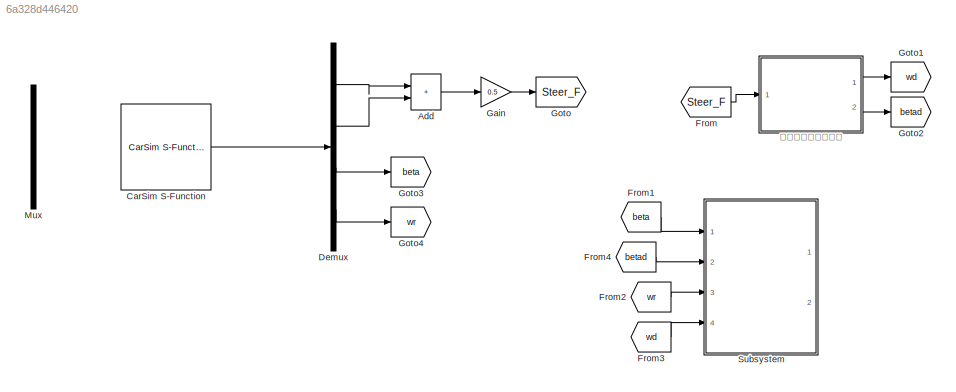
MODEL slx_6a328d446420
KIND model
CONFIG AbsTol = auto
CONFIG EnableMultiTasking = off
CONFIG FixedStep = auto
CONFIG MaxStep = auto
CONFIG MinStep = auto
CONFIG RelTol = 1e-3
CONFIG SampleTimeConstraint = Unconstrained
CONFIG Solver = VariableStepAuto
CONFIG SolverName = VariableStepAuto
CONFIG StartTime = 0.0
CONFIG StopTime = 10
BLOCK [Sum] Add
  IconShape = rectangular
  Ports = [2, 1]
BLOCK [Reference] CarSim S-Function  REF=Solver_SF/CarSim S-Function
  Ports = [0, 1]
  Priority = 1
  SourceBlock = Solver_SF/CarSim S-Function
  SourceProductName = CarSim S-Function
  SourceType = Vehicle math model library
BLOCK [Demux] Demux
  Ports = [1, 4]
BLOCK [From] From
  GotoTag = Steer_F
BLOCK [From] From1
  GotoTag = beta
BLOCK [From] From2
  GotoTag = wr
BLOCK [From] From3
  GotoTag = wd
BLOCK [From] From4
  GotoTag = betad
BLOCK [Gain] Gain
  Gain = 0.5
BLOCK [Goto] Goto
  GotoTag = Steer_F
BLOCK [Goto] Goto1
  GotoTag = wd
BLOCK [Goto] Goto2
  GotoTag = betad
BLOCK [Goto] Goto3
  GotoTag = beta
BLOCK [Goto] Goto4
  GotoTag = wr
BLOCK [Mux] Mux
  DisplayOption = bar
  Inputs = 2
  Ports = [2, 1]
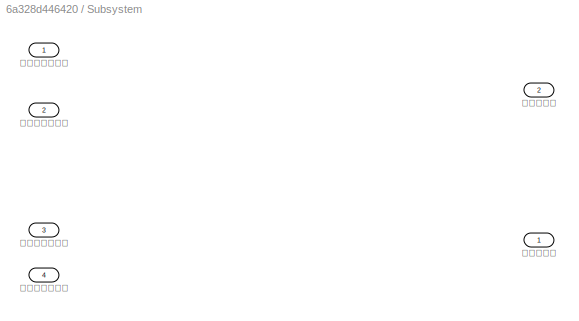
BLOCK [SubSystem] Subsystem
  Ports = [4, 2]
  RequestExecContextInheritance = off
BLOCK [Outport] Subsystem/右后轮转角
BLOCK [Inport] Subsystem/实际横摆角速度
  Port = 3
BLOCK [Inport] Subsystem/实际质心侧偏角
BLOCK [Outport] Subsystem/左后轮转角
  Port = 2
BLOCK [Inport] Subsystem/期望横摆角速度
  Port = 4
BLOCK [Inport] Subsystem/期望质心侧偏角
  Port = 2
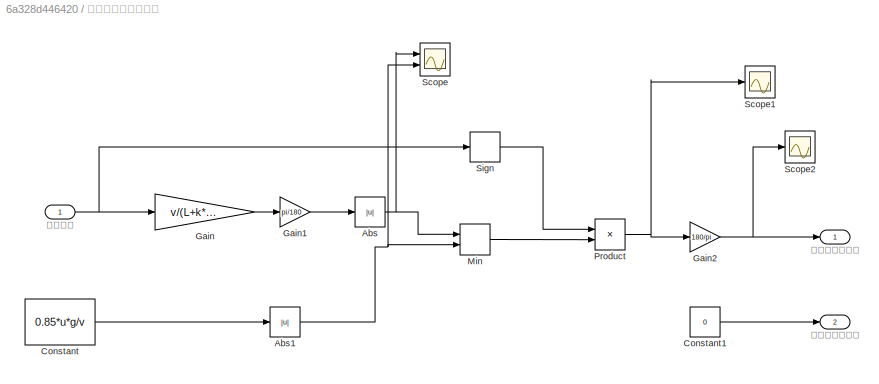
BLOCK [SubSystem] 理想状态变量的计算
  Ports = [1, 2]
  RequestExecContextInheritance = off
BLOCK [Abs] 理想状态变量的计算/Abs
  SaturateOnIntegerOverflow = off
BLOCK [Abs] 理想状态变量的计算/Abs1
  SaturateOnIntegerOverflow = off
BLOCK [Constant] 理想状态变量的计算/Constant
  Value = 0.85*u*g/v
BLOCK [Constant] 理想状态变量的计算/Constant1
  Value = 0
BLOCK [Gain] 理想状态变量的计算/Gain
  Gain = v/(L+k*v*v)
BLOCK [Gain] 理想状态变量的计算/Gain1
  Gain = pi/180
BLOCK [Gain] 理想状态变量的计算/Gain2
  Gain = 180/pi
BLOCK [MinMax] 理想状态变量的计算/Min
  Inputs = 2
  Ports = [2, 1]
BLOCK [Product] 理想状态变量的计算/Product
  Ports = [2, 1]
BLOCK [Scope] 理想状态变量的计算/Scope
  Floating = off
  NumInputPorts = 2
  Ports = [2]
  ScopeSpecificationString = Simulink.scopes.TimeScopeBlockCfg('CurrentConfiguration', extmgr.ConfigurationSet(extmgr.Configuration('Core','General UI',true),extmgr.Configuration('Core','Source UI',true),extmgr.Configuration('Sources','WiredSimulink',true),extmgr.Configuration('Visuals','Time Domain',true,'SerializedDisplays',{struct('MinYLimReal','-0.0588','MaxYLimReal','0.52923','YLabelReal','','MinYLimMag','0.00000','MaxYL...<+1409ch>
BLOCK [Scope] 理想状态变量的计算/Scope1
  Floating = off
  NumInputPorts = 1
  Ports = [1]
  ScopeSpecificationString = Simulink.scopes.TimeScopeBlockCfg('CurrentConfiguration', extmgr.ConfigurationSet(extmgr.Configuration('Core','General UI',true),extmgr.Configuration('Core','Source UI',true),extmgr.Configuration('Sources','WiredSimulink',true,'DataLoggingVariableName','ScopeData1'),extmgr.Configuration('Visuals','Time Domain',true,'SerializedDisplays',{struct('MinYLimReal','-0.29502','MaxYLimReal','0.29502','YLab...<+1366ch>
BLOCK [Scope] 理想状态变量的计算/Scope2
  Floating = off
  NumInputPorts = 1
  Ports = [1]
  ScopeSpecificationString = Simulink.scopes.TimeScopeBlockCfg('CurrentConfiguration', extmgr.ConfigurationSet(extmgr.Configuration('Core','General UI',true),extmgr.Configuration('Core','Source UI',true),extmgr.Configuration('Sources','WiredSimulink',true,'DataLoggingVariableName','ScopeData2'),extmgr.Configuration('Visuals','Time Domain',true,'SerializedDisplays',{struct('MinYLimReal','-16.90345','MaxYLimReal','16.90345','YL...<+1370ch>
BLOCK [Signum] 理想状态变量的计算/Sign
BLOCK [Inport] 理想状态变量的计算/前轮转角
BLOCK [Outport] 理想状态变量的计算/期望横摆角速度
BLOCK [Outport] 理想状态变量的计算/期望质心侧偏角
  Port = 2
LINE Add:1 -> Gain:1
LINE CarSim S-Function:1 -> Demux:1
LINE Demux:1 -> Add:1
LINE Demux:2 -> Add:2
LINE Demux:3 -> Goto3:1
LINE Demux:4 -> Goto4:1
LINE From1:1 -> Subsystem:1
LINE From2:1 -> Subsystem:3
LINE From3:1 -> Subsystem:4
LINE From4:1 -> Subsystem:2
LINE From:1 -> 理想状态变量的计算:1
LINE Gain:1 -> Goto:1
NET 理想状态变量的计算/Abs1:1 -> 理想状态变量的计算/Min:2, 理想状态变量的计算/Scope:2
NET 理想状态变量的计算/Abs:1 -> 理想状态变量的计算/Min:1, 理想状态变量的计算/Scope:1
LINE 理想状态变量的计算/Constant1:1 -> 理想状态变量的计算/期望质心侧偏角:1
LINE 理想状态变量的计算/Constant:1 -> 理想状态变量的计算/Abs1:1
LINE 理想状态变量的计算/Gain1:1 -> 理想状态变量的计算/Abs:1
NET 理想状态变量的计算/Gain2:1 -> 理想状态变量的计算/Scope2:1, 理想状态变量的计算/期望横摆角速度:1
LINE 理想状态变量的计算/Gain:1 -> 理想状态变量的计算/Gain1:1
LINE 理想状态变量的计算/Min:1 -> 理想状态变量的计算/Product:2
NET 理想状态变量的计算/Product:1 -> 理想状态变量的计算/Gain2:1, 理想状态变量的计算/Scope1:1
LINE 理想状态变量的计算/Sign:1 -> 理想状态变量的计算/Product:1
NET 理想状态变量的计算/前轮转角:1 -> 理想状态变量的计算/Gain:1, 理想状态变量的计算/Sign:1
LINE 理想状态变量的计算:1 -> Goto1:1
LINE 理想状态变量的计算:2 -> Goto2:1
note: NET lines group one-source signal fan-out (src -> all destinations, sorted); 1:1 wires keep LINE
